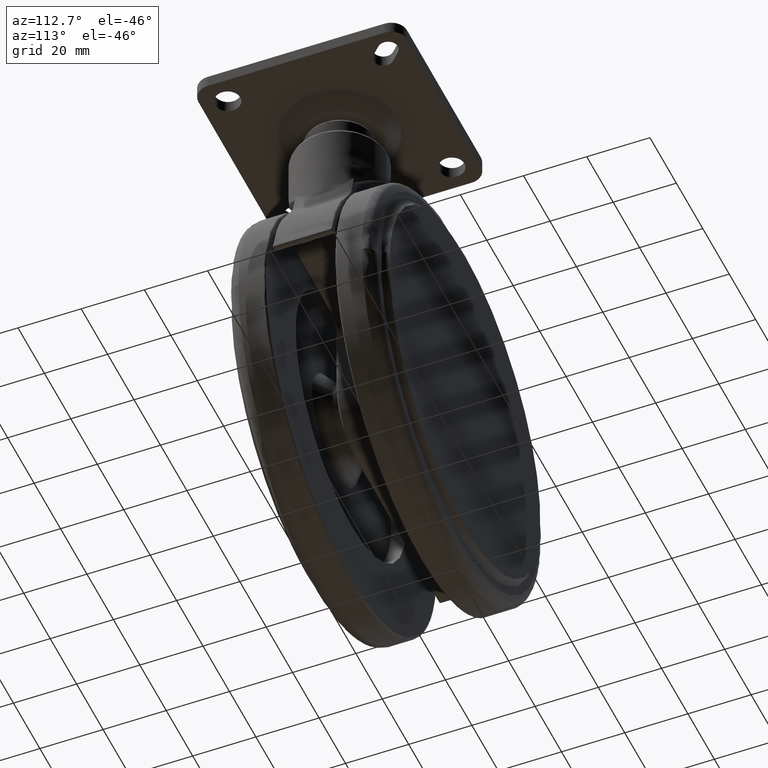
[diagram: clean part render]
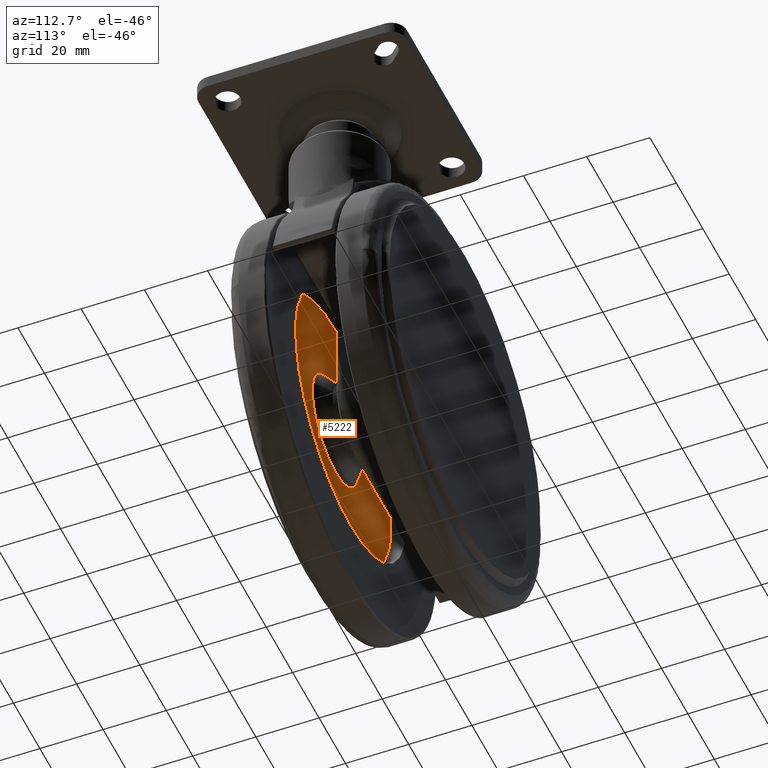
[diagram: same view with one face highlighted and labeled with its STEP entity id]
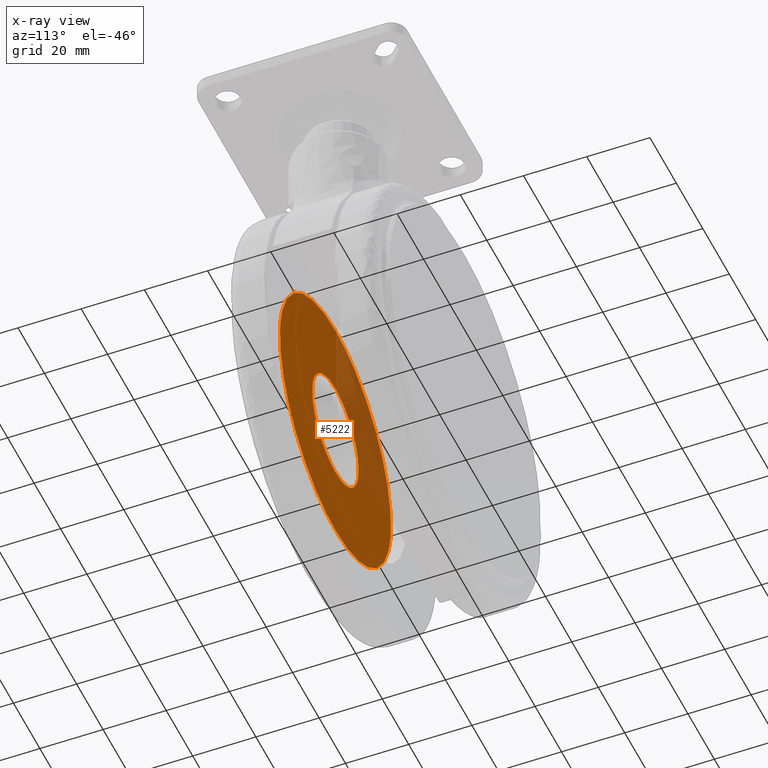
[diagram: x-ray of the same camera — body ghosted, the highlighted face saturated]
A machine part, auxiliary view. The second image highlights one B-rep face of the part: STEP entity #5222.
The next image is the same camera in x-ray: the body ghosted, the highlighted face saturated — about 23% of this face is hidden behind the body in this view.
In plain terms, the highlighted face is a freeform B-spline surface patch.
Its self-contained STEP definition (entity closure, byte-faithful):
#5042=CARTESIAN_POINT('',(-52.016473606915653,-16.000000000038451,-75.585293867841642));
#5043=VERTEX_POINT('',#5042);
#5049=CARTESIAN_POINT('',(-35.0,-16.0,-53.999999999999993));
#5050=VERTEX_POINT('',#5049);
#5051=CARTESIAN_POINT('',(-52.016473606915653,-16.000000000038455,-75.585293867841642));
#5052=CARTESIAN_POINT('',(-52.500000000039243,-16.000000000036660,-73.571261493907144));
#5053=CARTESIAN_POINT('',(-52.500000000036813,-16.000000000034380,-71.500000000008839));
#5054=CARTESIAN_POINT('',(-52.500000000016229,-16.000000000015159,-54.000000000003887));
#5055=CARTESIAN_POINT('',(-35.0,-16.0,-53.999999999999993));
#5063=(BOUNDED_CURVE()B_SPLINE_CURVE(2,(#5051,#5052,#5053,#5054,#5055),.UNSPECIFIED.,.F.,.U.)B_SPLINE_CURVE_WITH_KNOTS((3,2,3),(0.710109830384100,0.750000000000000,1.0),.UNSPECIFIED.)CURVE()GEOMETRIC_REPRESENTATION_ITEM()RATIONAL_B_SPLINE_CURVE((0.921445412888216,0.953265759288738,1.0,0.707106781186548,1.0))REPRESENTATION_ITEM(''));
#5064=EDGE_CURVE('',#5043,#5050,#5063,.T.);
#5066=CARTESIAN_POINT('',(-17.983526393084350,-16.000000000038451,-67.414706132158358));
#5067=VERTEX_POINT('',#5066);
#5068=CARTESIAN_POINT('',(-35.0,-16.0,-53.999999999999993));
#5069=CARTESIAN_POINT('',(-21.204112395034969,-16.000000000019220,-53.999999999995040));
#5070=CARTESIAN_POINT('',(-17.983526393084347,-16.000000000038451,-67.414706132158372));
#5078=(BOUNDED_CURVE()B_SPLINE_CURVE(2,(#5068,#5069,#5070),.UNSPECIFIED.,.F.,.U.)B_SPLINE_CURVE_WITH_KNOTS((3,3),(0.0,0.210109830384100),.UNSPECIFIED.)CURVE()GEOMETRIC_REPRESENTATION_ITEM()RATIONAL_B_SPLINE_CURVE((1.0,0.753841021897810,0.921445412888216))REPRESENTATION_ITEM(''));
#5079=EDGE_CURVE('',#5050,#5067,#5078,.T.);
#5109=CARTESIAN_POINT('',(-35.0,-16.0,-89.0));
#5110=VERTEX_POINT('',#5109);
#5111=CARTESIAN_POINT('',(-17.983526393084347,-16.000000000038451,-67.414706132158358));
#5112=CARTESIAN_POINT('',(-17.499999999960760,-16.000000000036653,-69.428738506092870));
#5113=CARTESIAN_POINT('',(-17.499999999963190,-16.000000000034380,-71.499999999991175));
#5114=CARTESIAN_POINT('',(-17.499999999983775,-16.000000000015159,-88.999999999996106));
#5115=CARTESIAN_POINT('',(-35.0,-16.0,-89.0));
#5123=(BOUNDED_CURVE()B_SPLINE_CURVE(2,(#5111,#5112,#5113,#5114,#5115),.UNSPECIFIED.,.F.,.U.)B_SPLINE_CURVE_WITH_KNOTS((3,2,3),(0.210109830384100,0.250000000000000,0.500000000000000),.UNSPECIFIED.)CURVE()GEOMETRIC_REPRESENTATION_ITEM()RATIONAL_B_SPLINE_CURVE((0.921445412888216,0.953265759288737,1.0,0.707106781186548,1.0))REPRESENTATION_ITEM(''));
#5124=EDGE_CURVE('',#5067,#5110,#5123,.T.);
#5126=CARTESIAN_POINT('',(-35.0,-16.0,-89.0));
#5127=CARTESIAN_POINT('',(-48.795887604965031,-16.000000000019231,-89.000000000004931));
#5128=CARTESIAN_POINT('',(-52.016473606915653,-16.000000000038455,-75.585293867841642));
#5136=(BOUNDED_CURVE()B_SPLINE_CURVE(2,(#5126,#5127,#5128),.UNSPECIFIED.,.F.,.U.)B_SPLINE_CURVE_WITH_KNOTS((3,3),(0.500000000000000,0.710109830384100),.UNSPECIFIED.)CURVE()GEOMETRIC_REPRESENTATION_ITEM()RATIONAL_B_SPLINE_CURVE((1.0,0.753841021897810,0.921445412888215))REPRESENTATION_ITEM(''));
#5137=EDGE_CURVE('',#5110,#5043,#5136,.T.);
#5145=CARTESIAN_POINT('',(-81.194766266986093,-16.0,-117.695799837191700));
#5146=CARTESIAN_POINT('',(-81.194766266986093,-16.0,-25.304197909752720));
#5147=CARTESIAN_POINT('',(11.194764764949021,-16.0,-117.695799837191700));
#5148=CARTESIAN_POINT('',(11.194764764949021,-16.0,-25.304197909752720));
#5149=B_SPLINE_SURFACE_WITH_KNOTS('',1,1,((#5145,#5147),(#5146,#5148)),.UNSPECIFIED.,.F.,.F.,.U.,(2,2),(2,2),(0.0,92.391601927438970),(0.0,92.389531031935107),.UNSPECIFIED.);
#5150=CARTESIAN_POINT('',(-35.0,-15.999999999999700,-29.499999999999989));
#5151=VERTEX_POINT('',#5150);
#5152=CARTESIAN_POINT('',(6.921663377076248,-15.999999999999700,-68.935991478525921));
#5153=VERTEX_POINT('',#5152);
#5154=CARTESIAN_POINT('',(-35.0,-15.999999999999700,-29.499999999999989));
#5155=CARTESIAN_POINT('',(4.509683268033588,-15.999999999999694,-29.500000000000323));
#5156=CARTESIAN_POINT('',(6.921663377076248,-15.999999999999694,-68.935991478525921));
#5164=(BOUNDED_CURVE()B_SPLINE_CURVE(2,(#5154,#5155,#5156),.UNSPECIFIED.,.F.,.U.)B_SPLINE_CURVE_WITH_KNOTS((3,3),(0.0,0.239333086292072),.UNSPECIFIED.)CURVE()GEOMETRIC_REPRESENTATION_ITEM()RATIONAL_B_SPLINE_CURVE((1.0,0.719603847949429,0.976072307536331))REPRESENTATION_ITEM(''));
#5165=EDGE_CURVE('',#5151,#5153,#5164,.T.);
#5166=ORIENTED_EDGE('',*,*,#5165,.T.);
#5167=CARTESIAN_POINT('',(-35.0,-15.999999999999700,-113.500000000000000));
#5168=VERTEX_POINT('',#5167);
#5169=CARTESIAN_POINT('',(6.921663377076248,-15.999999999999696,-68.935991478525921));
#5170=CARTESIAN_POINT('',(6.999999999989313,-15.999999999999698,-70.216799053207438));
#5171=CARTESIAN_POINT('',(6.999999999989479,-15.999999999999700,-71.500000000000639));
#5172=CARTESIAN_POINT('',(6.999999999994900,-15.999999999999703,-113.500000000000270));
#5173=CARTESIAN_POINT('',(-35.0,-15.999999999999700,-113.500000000000000));
#5181=(BOUNDED_CURVE()B_SPLINE_CURVE(2,(#5169,#5170,#5171,#5172,#5173),.UNSPECIFIED.,.F.,.U.)B_SPLINE_CURVE_WITH_KNOTS((3,2,3),(0.239333086292072,0.250000000000000,0.500000000000000),.UNSPECIFIED.)CURVE()GEOMETRIC_REPRESENTATION_ITEM()RATIONAL_B_SPLINE_CURVE((0.976072307536331,0.987502933237118,1.0,0.707106781186547,1.0))REPRESENTATION_ITEM(''));
#5182=EDGE_CURVE('',#5153,#5168,#5181,.T.);
#5183=ORIENTED_EDGE('',*,*,#5182,.T.);
#5184=CARTESIAN_POINT('',(-76.921663377076257,-15.999999999999700,-74.064008521474108));
#5185=VERTEX_POINT('',#5184);
#5186=CARTESIAN_POINT('',(-35.0,-15.999999999999700,-113.500000000000000));
#5187=CARTESIAN_POINT('',(-74.509683268033555,-15.999999999999702,-113.499999999999620));
#5188=CARTESIAN_POINT('',(-76.921663377076257,-15.999999999999702,-74.064008521474108));
#5196=(BOUNDED_CURVE()B_SPLINE_CURVE(2,(#5186,#5187,#5188),.UNSPECIFIED.,.F.,.U.)B_SPLINE_CURVE_WITH_KNOTS((3,3),(0.500000000000000,0.739333086292071),.UNSPECIFIED.)CURVE()GEOMETRIC_REPRESENTATION_ITEM()RATIONAL_B_SPLINE_CURVE((1.0,0.719603847949430,0.976072307536331))REPRESENTATION_ITEM(''));
#5197=EDGE_CURVE('',#5168,#5185,#5196,.T.);
#5198=ORIENTED_EDGE('',*,*,#5197,.T.);
#5199=CARTESIAN_POINT('',(-76.921663377076257,-15.999999999999702,-74.064008521474108));
#5200=CARTESIAN_POINT('',(-76.999999999989313,-15.999999999999702,-72.783200946792576));
#5201=CARTESIAN_POINT('',(-76.999999999989484,-15.999999999999700,-71.499999999999346));
#5202=CARTESIAN_POINT('',(-76.999999999994927,-15.999999999999703,-29.499999999999673));
#5203=CARTESIAN_POINT('',(-35.0,-15.999999999999700,-29.499999999999989));
#5211=(BOUNDED_CURVE()B_SPLINE_CURVE(2,(#5199,#5200,#5201,#5202,#5203),.UNSPECIFIED.,.F.,.U.)B_SPLINE_CURVE_WITH_KNOTS((3,2,3),(0.739333086292071,0.750000000000000,1.0),.UNSPECIFIED.)CURVE()GEOMETRIC_REPRESENTATION_ITEM()RATIONAL_B_SPLINE_CURVE((0.976072307536331,0.987502933237118,1.0,0.707106781186547,1.0))REPRESENTATION_ITEM(''));
#5212=EDGE_CURVE('',#5185,#5151,#5211,.T.);
#5213=ORIENTED_EDGE('',*,*,#5212,.T.);
#5214=EDGE_LOOP('',(#5166,#5183,#5198,#5213));
#5215=FACE_OUTER_BOUND('',#5214,.T.);
#5216=ORIENTED_EDGE('',*,*,#5137,.F.);
#5217=ORIENTED_EDGE('',*,*,#5124,.F.);
#5218=ORIENTED_EDGE('',*,*,#5079,.F.);
#5219=ORIENTED_EDGE('',*,*,#5064,.F.);
#5220=EDGE_LOOP('',(#5216,#5217,#5218,#5219));
#5221=FACE_BOUND('',#5220,.T.);
#5222=ADVANCED_FACE('',(#5215,#5221),#5149,.T.);